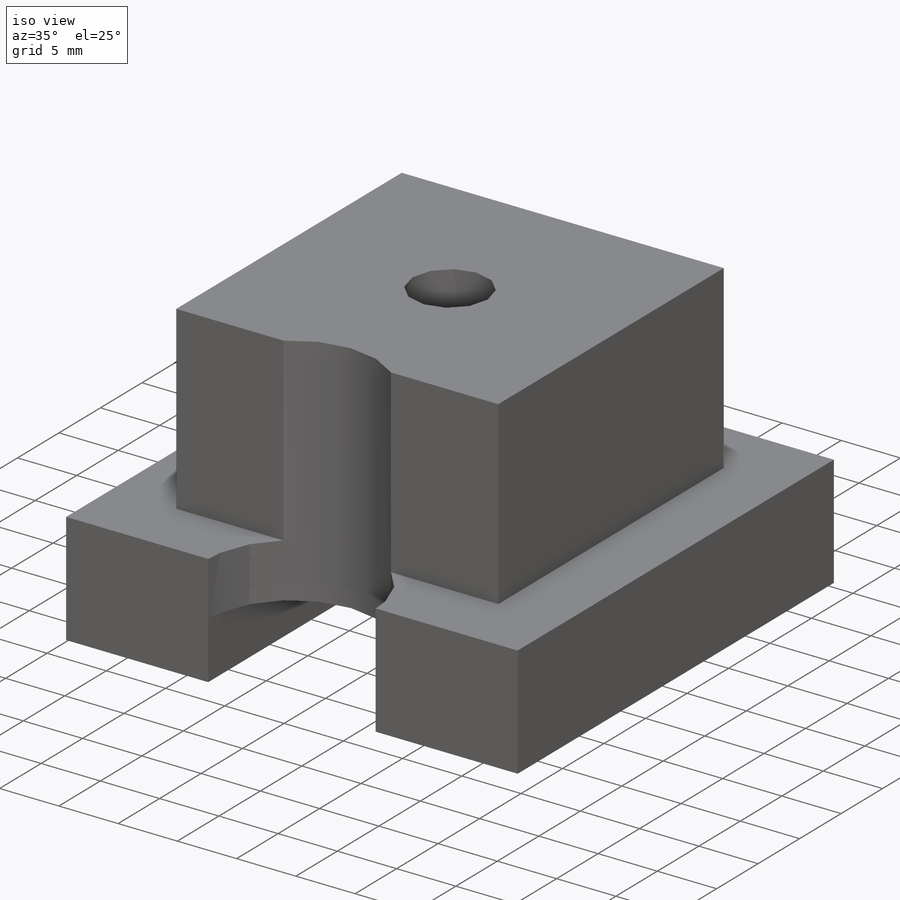
[diagram: iso view]
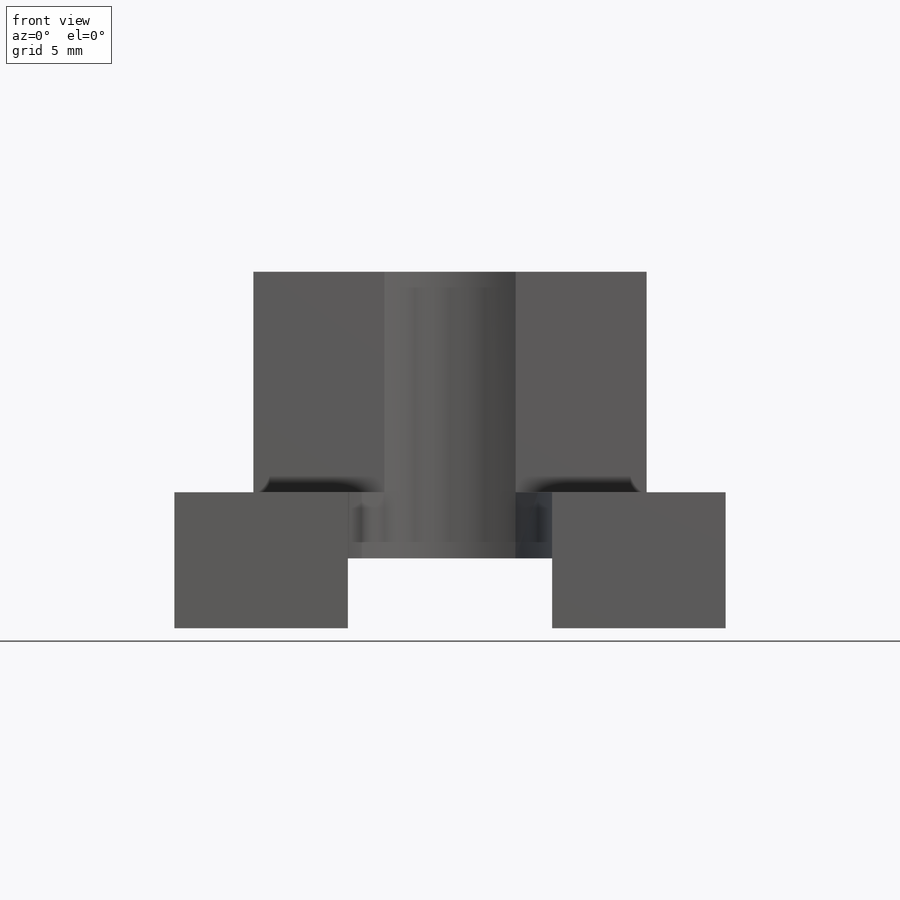
[diagram: front view]
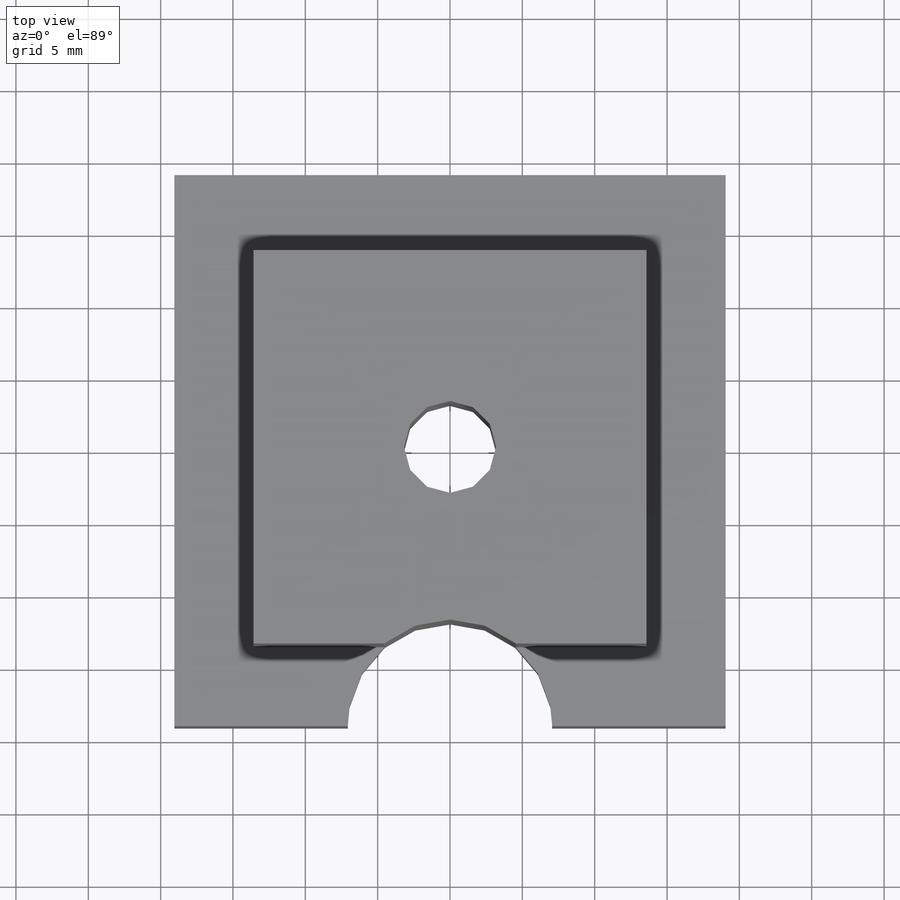
[diagram: top view]
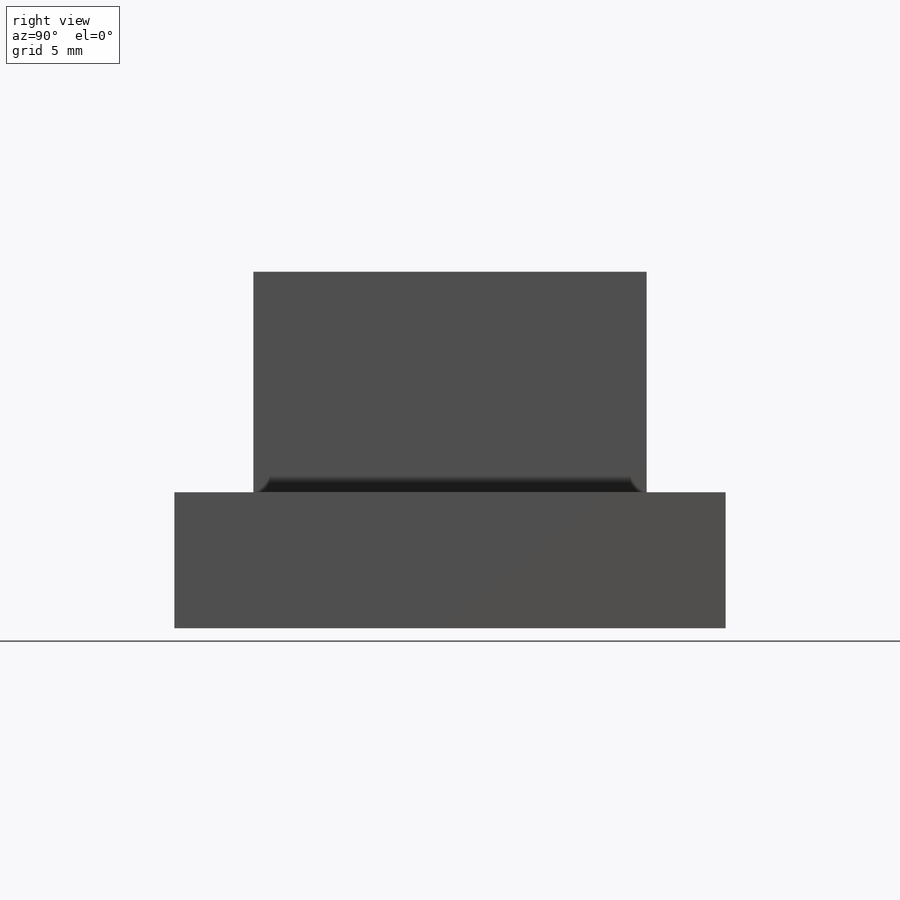
[diagram: right view]
SOLIDWORKS PART (.sldprt)
format: sldprt  version: not decoded by parser v0  size: 226,304 bytes
history: native  units: mm
features: sketch x6, extrude x3, material x1, cut_extrude x1, hole x1 + 1 further entry (+10 scaffold rows collapsed)
feature tree (23):
  scaffold x10  (default folders/planes/origin — collapsed)
  material  "6061-T6 Al"
  "Origin"  ID=392984584
  sketch  "Sketch1"  dims[c1.D1=~179.807823mm c1.D2=~187.491918mm c2.D1=38.1mm]
  extrude  "Boss-Extrude1"  Depth=4.572mm
  sketch  "Sketch5"  dims[c1.D1=~24.421852mm c1.D2=~25.139145mm c2.D1=27.178mm]
  extrude  "Boss-Extrude2"  Depth=19.812mm
  sketch  "Sketch2"  dims[D1=14.127mm D2=19.0mm]
  cut_extrude  "Cut-Extrude1"  [1 undecoded]
  hole  "1/4-20 Tapped Hole1"  Diameter=6.35mm Depth=19.812mm
  sketch  "Sketch4"
  sketch  "Sketch3"  dims[hole-wizard template sketch: 60 standard entries collapsed; hole parameters kept: c18.Thru Tap Drill Depth=19.812mm]
  sketch  "Sketch6"  dims[c1.D1=33.02mm c1.D2=~9.899937mm c2.D1=33.02mm c2.D2=~9.899937mm]
  extrude  "Boss-Extrude3"  Depth=4.826mm
decode coverage: 9 of 11 modeling features carry decoded parameters; 1 rows unclassified (native names shown)
note: ~ marks probable driven/reference dimensions
note: 1 parameter value undecoded
note: suppression state not decoded; provenance and decode notes live in map.json
